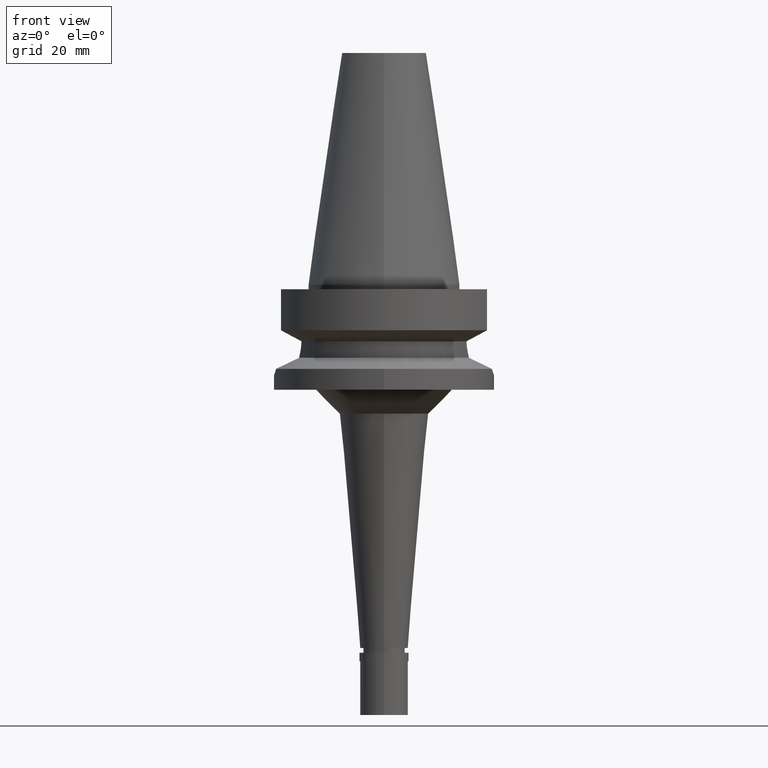
[diagram: clean part render]
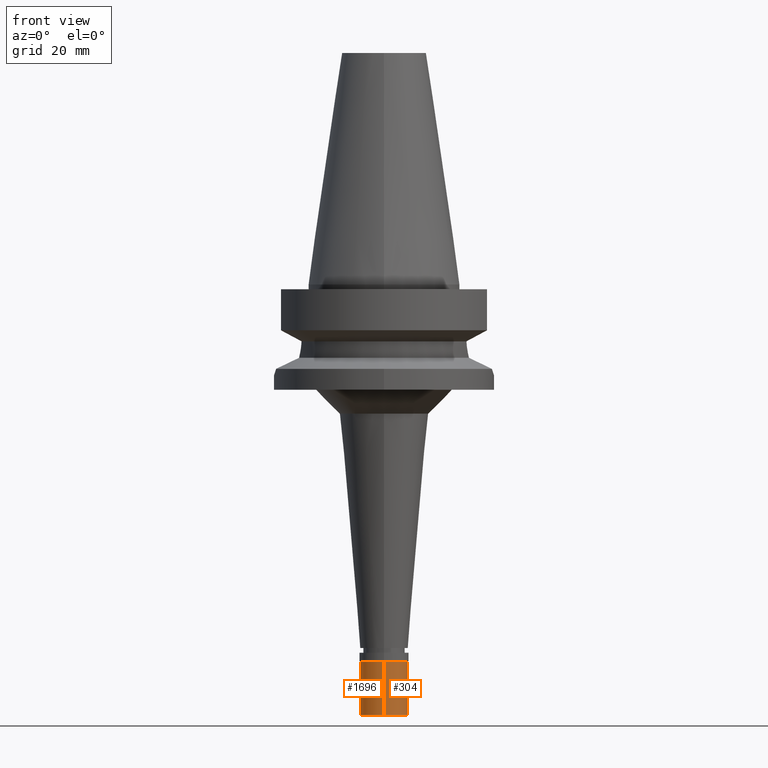
[diagram: same view with one multi-face feature highlighted, each face labeled with its STEP entity id]
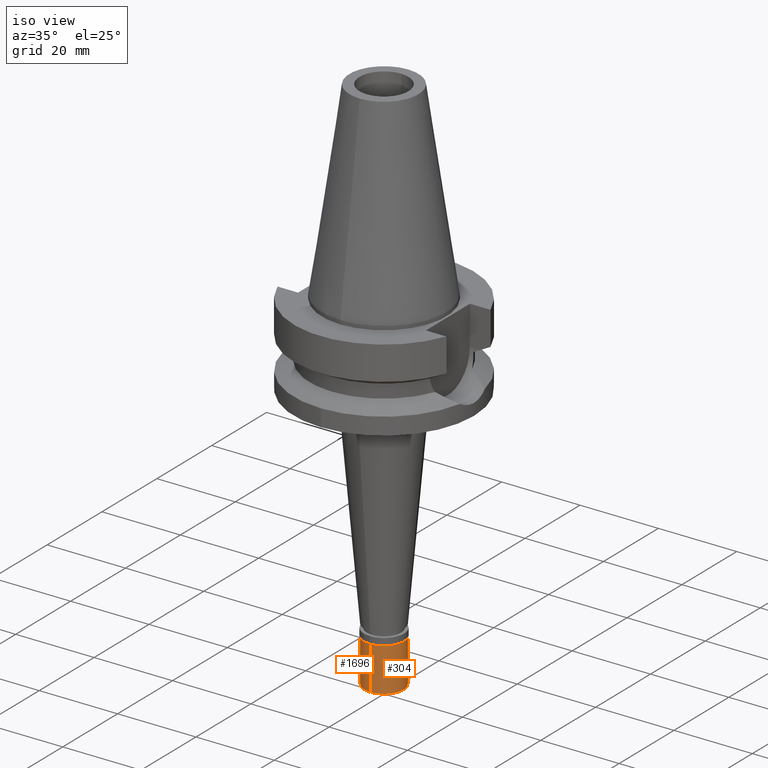
[diagram: same view with one multi-face feature highlighted, each face labeled with its STEP entity id]
A machine part, front view. The highlighted faces form ONE feature: a constant-radius fillet chain: 2 tangent blend faces with common blend radius 5 mm. The faces share edges in the B-rep.
A second angle (iso view) of the same feature is appended — it is thin or edge-on in the first view.
Their STEP definitions:
[1] entity #304 (Cylinder):
#80 = CARTESIAN_POINT ( 'NONE',  ( 0.0000000000000000000, 0.0000000000000000000, -13.65000000000000036 ) ) ;
#130 = ORIENTED_EDGE ( 'NONE', *, *, #1395, .T. ) ;
#153 = LINE ( 'NONE', #2443, #2118 ) ;
#170 = ORIENTED_EDGE ( 'NONE', *, *, #430, .T. ) ;
#304 = ADVANCED_FACE ( 'NONE', ( #535 ), #2354, .T. ) ;
#305 = DIRECTION ( 'NONE',  ( 0.0000000000000000000, 0.0000000000000000000, 1.000000000000000000 ) ) ;
#311 = CARTESIAN_POINT ( 'NONE',  ( 0.0000000000000000000, 0.0000000000000000000, -13.00000000000000000 ) ) ;
#430 = EDGE_CURVE ( 'NONE', #2496, #2788, #1689, .T. ) ;
#535 = FACE_OUTER_BOUND ( 'NONE', #1715, .T. ) ;
#709 = ORIENTED_EDGE ( 'NONE', *, *, #1594, .T. ) ;
#731 = VERTEX_POINT ( 'NONE', #1329 ) ;
#778 = VECTOR ( 'NONE', #2594, 1000.000000000000000 ) ;
#807 = DIRECTION ( 'NONE',  ( 0.0000000000000000000, 1.000000000000000000, 0.0000000000000000000 ) ) ;
#817 = CIRCLE ( 'NONE', #2059, 5.000000000000000000 ) ;
#843 = CARTESIAN_POINT ( 'NONE',  ( 0.0000000000000000000, 5.000000000000000000, -1.800000000000000044 ) ) ;
#998 = VERTEX_POINT ( 'NONE', #843 ) ;
#1048 = CARTESIAN_POINT ( 'NONE',  ( 0.0000000000000000000, -5.000000000000000000, -1.800000000000000044 ) ) ;
#1144 = CIRCLE ( 'NONE', #1526, 5.000000000000000000 ) ;
#1180 = ORIENTED_EDGE ( 'NONE', *, *, #2697, .F. ) ;
#1224 = DIRECTION ( 'NONE',  ( 0.0000000000000000000, 1.000000000000000000, 0.0000000000000000000 ) ) ;
#1329 = CARTESIAN_POINT ( 'NONE',  ( 0.0000000000000000000, 5.000000000000000000, -13.00000000000000000 ) ) ;
#1395 = EDGE_CURVE ( 'NONE', #2788, #731, #1144, .T. ) ;
#1526 = AXIS2_PLACEMENT_3D ( 'NONE', #311, #2125, #2789 ) ;
#1594 = EDGE_CURVE ( 'NONE', #998, #2496, #817, .T. ) ;
#1689 = LINE ( 'NONE', #1702, #778 ) ;
#1702 = CARTESIAN_POINT ( 'NONE',  ( 0.0000000000000000000, -5.000000000000000000, -1.800000000000000044 ) ) ;
#1715 = EDGE_LOOP ( 'NONE', ( #709, #170, #130, #1180 ) ) ;
#1771 = AXIS2_PLACEMENT_3D ( 'NONE', #80, #305, #1224 ) ;
#2059 = AXIS2_PLACEMENT_3D ( 'NONE', #2185, #2172, #807 ) ;
#2118 = VECTOR ( 'NONE', #2681, 1000.000000000000000 ) ;
#2125 = DIRECTION ( 'NONE',  ( 0.0000000000000000000, 0.0000000000000000000, 1.000000000000000000 ) ) ;
#2172 = DIRECTION ( 'NONE',  ( 0.0000000000000000000, 0.0000000000000000000, -1.000000000000000000 ) ) ;
#2185 = CARTESIAN_POINT ( 'NONE',  ( 0.0000000000000000000, 0.0000000000000000000, -1.800000000000000044 ) ) ;
#2279 = CARTESIAN_POINT ( 'NONE',  ( 0.0000000000000000000, -5.000000000000000000, -13.00000000000000000 ) ) ;
#2354 = CYLINDRICAL_SURFACE ( 'NONE', #1771, 5.000000000000000000 ) ;
#2443 = CARTESIAN_POINT ( 'NONE',  ( 0.0000000000000000000, 5.000000000000000000, -1.800000000000000044 ) ) ;
#2496 = VERTEX_POINT ( 'NONE', #1048 ) ;
#2594 = DIRECTION ( 'NONE',  ( 0.0000000000000000000, 0.0000000000000000000, -1.000000000000000000 ) ) ;
#2681 = DIRECTION ( 'NONE',  ( 0.0000000000000000000, 0.0000000000000000000, -1.000000000000000000 ) ) ;
#2697 = EDGE_CURVE ( 'NONE', #998, #731, #153, .T. ) ;
#2788 = VERTEX_POINT ( 'NONE', #2279 ) ;
#2789 = DIRECTION ( 'NONE',  ( 0.0000000000000000000, -1.000000000000000000, 0.0000000000000000000 ) ) ;
[2] entity #1696 (Cylinder):
#153 = LINE ( 'NONE', #2443, #2118 ) ;
#194 = AXIS2_PLACEMENT_3D ( 'NONE', #2552, #1644, #990 ) ;
#430 = EDGE_CURVE ( 'NONE', #2496, #2788, #1689, .T. ) ;
#445 = CIRCLE ( 'NONE', #194, 5.000000000000000000 ) ;
#492 = FACE_OUTER_BOUND ( 'NONE', #773, .T. ) ;
#558 = ORIENTED_EDGE ( 'NONE', *, *, #2332, .T. ) ;
#731 = VERTEX_POINT ( 'NONE', #1329 ) ;
#773 = EDGE_LOOP ( 'NONE', ( #2510, #2588, #558, #995 ) ) ;
#778 = VECTOR ( 'NONE', #2594, 1000.000000000000000 ) ;
#843 = CARTESIAN_POINT ( 'NONE',  ( 0.0000000000000000000, 5.000000000000000000, -1.800000000000000044 ) ) ;
#990 = DIRECTION ( 'NONE',  ( 0.0000000000000000000, 1.000000000000000000, 0.0000000000000000000 ) ) ;
#995 = ORIENTED_EDGE ( 'NONE', *, *, #2697, .T. ) ;
#998 = VERTEX_POINT ( 'NONE', #843 ) ;
#1018 = AXIS2_PLACEMENT_3D ( 'NONE', #1406, #1856, #2351 ) ;
#1048 = CARTESIAN_POINT ( 'NONE',  ( 0.0000000000000000000, -5.000000000000000000, -1.800000000000000044 ) ) ;
#1127 = CYLINDRICAL_SURFACE ( 'NONE', #2669, 5.000000000000000000 ) ;
#1329 = CARTESIAN_POINT ( 'NONE',  ( 0.0000000000000000000, 5.000000000000000000, -13.00000000000000000 ) ) ;
#1332 = CARTESIAN_POINT ( 'NONE',  ( 0.0000000000000000000, 0.0000000000000000000, -13.65000000000000036 ) ) ;
#1406 = CARTESIAN_POINT ( 'NONE',  ( 0.0000000000000000000, 0.0000000000000000000, -1.800000000000000044 ) ) ;
#1644 = DIRECTION ( 'NONE',  ( 0.0000000000000000000, 0.0000000000000000000, 1.000000000000000000 ) ) ;
#1689 = LINE ( 'NONE', #1702, #778 ) ;
#1696 = ADVANCED_FACE ( 'NONE', ( #492 ), #1127, .T. ) ;
#1702 = CARTESIAN_POINT ( 'NONE',  ( 0.0000000000000000000, -5.000000000000000000, -1.800000000000000044 ) ) ;
#1719 = CIRCLE ( 'NONE', #1018, 5.000000000000000000 ) ;
#1856 = DIRECTION ( 'NONE',  ( 0.0000000000000000000, 0.0000000000000000000, -1.000000000000000000 ) ) ;
#2118 = VECTOR ( 'NONE', #2681, 1000.000000000000000 ) ;
#2279 = CARTESIAN_POINT ( 'NONE',  ( 0.0000000000000000000, -5.000000000000000000, -13.00000000000000000 ) ) ;
#2286 = DIRECTION ( 'NONE',  ( 0.0000000000000000000, 1.000000000000000000, 0.0000000000000000000 ) ) ;
#2332 = EDGE_CURVE ( 'NONE', #2496, #998, #1719, .T. ) ;
#2351 = DIRECTION ( 'NONE',  ( 0.0000000000000000000, -1.000000000000000000, 0.0000000000000000000 ) ) ;
#2420 = EDGE_CURVE ( 'NONE', #731, #2788, #445, .T. ) ;
#2443 = CARTESIAN_POINT ( 'NONE',  ( 0.0000000000000000000, 5.000000000000000000, -1.800000000000000044 ) ) ;
#2496 = VERTEX_POINT ( 'NONE', #1048 ) ;
#2510 = ORIENTED_EDGE ( 'NONE', *, *, #2420, .T. ) ;
#2552 = CARTESIAN_POINT ( 'NONE',  ( 0.0000000000000000000, 0.0000000000000000000, -13.00000000000000000 ) ) ;
#2588 = ORIENTED_EDGE ( 'NONE', *, *, #430, .F. ) ;
#2594 = DIRECTION ( 'NONE',  ( 0.0000000000000000000, 0.0000000000000000000, -1.000000000000000000 ) ) ;
#2669 = AXIS2_PLACEMENT_3D ( 'NONE', #1332, #2911, #2286 ) ;
#2681 = DIRECTION ( 'NONE',  ( 0.0000000000000000000, 0.0000000000000000000, -1.000000000000000000 ) ) ;
#2697 = EDGE_CURVE ( 'NONE', #998, #731, #153, .T. ) ;
#2788 = VERTEX_POINT ( 'NONE', #2279 ) ;
#2911 = DIRECTION ( 'NONE',  ( 0.0000000000000000000, 0.0000000000000000000, 1.000000000000000000 ) ) ;